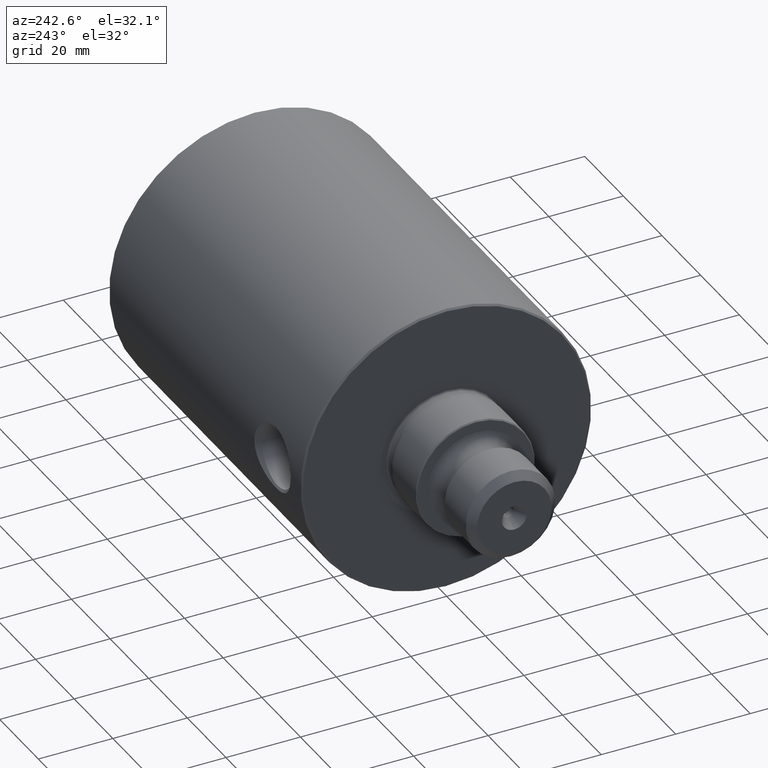
[diagram: clean part render]
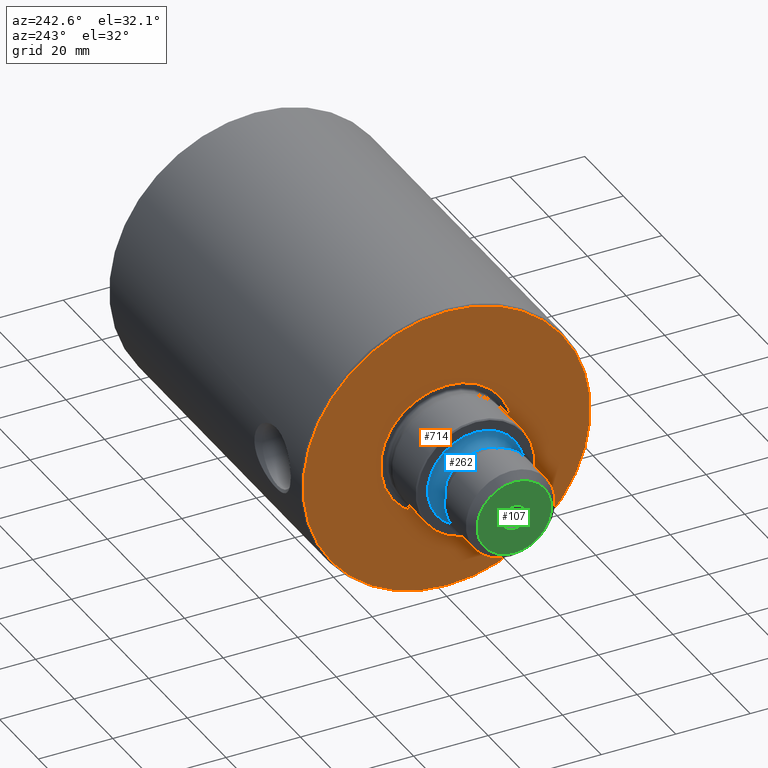
[diagram: same view with three faces highlighted in distinct colors, each labeled with its STEP entity id]
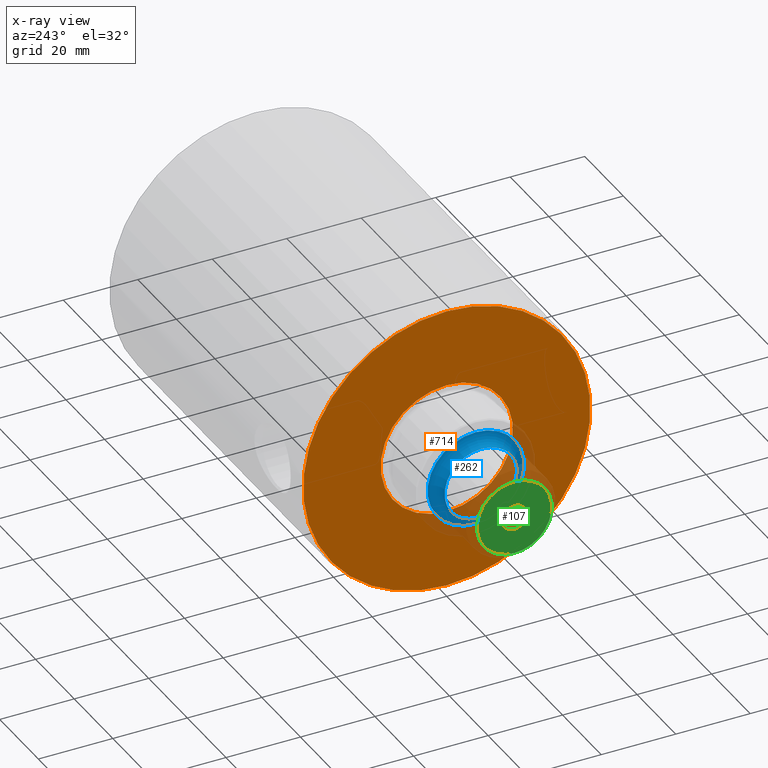
[diagram: x-ray of the same camera — body ghosted, the three highlighted faces saturated]
A machine part, auxiliary view with three faces highlighted in distinct colors.
The next image is the same camera in x-ray (body ghosted, the three faces saturated) — at least one of them is partly hidden behind the body in this view.
Their STEP definitions:

[orange] entity #714 — the highlighted planar face has unit normal (-1, 0, 0).
#77 = CIRCLE ( 'NONE', #969, 38.54999999999999000 ) ;
#84 = CARTESIAN_POINT ( 'NONE',  ( -100.0000000000000000, 0.0000000000000000000, -17.76503003164296500 ) ) ;
#96 = EDGE_CURVE ( 'NONE', #592, #592, #77, .T. ) ;
#103 = EDGE_CURVE ( 'NONE', #399, #399, #583, .T. ) ;
#116 = ORIENTED_EDGE ( 'NONE', *, *, #103, .T. ) ;
#125 = AXIS2_PLACEMENT_3D ( 'NONE', #363, #647, #577 ) ;
#333 = AXIS2_PLACEMENT_3D ( 'NONE', #897, #766, #800 ) ;
#363 = CARTESIAN_POINT ( 'NONE',  ( -100.0000000000000000, 0.0000000000000000000, 0.0000000000000000000 ) ) ;
#399 = VERTEX_POINT ( 'NONE', #84 ) ;
#412 = EDGE_LOOP ( 'NONE', ( #489 ) ) ;
#489 = ORIENTED_EDGE ( 'NONE', *, *, #96, .T. ) ;
#530 = FACE_BOUND ( 'NONE', #760, .T. ) ;
#577 = DIRECTION ( 'NONE',  ( 0.0000000000000000000, 0.0000000000000000000, -1.000000000000000000 ) ) ;
#583 = CIRCLE ( 'NONE', #125, 17.76503003164296500 ) ;
#592 = VERTEX_POINT ( 'NONE', #693 ) ;
#647 = DIRECTION ( 'NONE',  ( 1.000000000000000000, -0.0000000000000000000, -0.0000000000000000000 ) ) ;
#664 = DIRECTION ( 'NONE',  ( -1.000000000000000000, 0.0000000000000000000, 0.0000000000000000000 ) ) ;
#693 = CARTESIAN_POINT ( 'NONE',  ( -100.0000000000000000, 0.0000000000000000000, 38.54999999999999000 ) ) ;
#714 = ADVANCED_FACE ( 'NONE', ( #910, #530 ), #900, .T. ) ;
#760 = EDGE_LOOP ( 'NONE', ( #116 ) ) ;
#766 = DIRECTION ( 'NONE',  ( -1.000000000000000000, 0.0000000000000000000, 0.0000000000000000000 ) ) ;
#800 = DIRECTION ( 'NONE',  ( 0.0000000000000000000, 0.0000000000000000000, 1.000000000000000000 ) ) ;
#897 = CARTESIAN_POINT ( 'NONE',  ( -100.0000000000000000, 39.04999999999998300, 0.0000000000000000000 ) ) ;
#900 = PLANE ( 'NONE',  #333 ) ;
#910 = FACE_OUTER_BOUND ( 'NONE', #412, .T. ) ;
#924 = DIRECTION ( 'NONE',  ( 0.0000000000000000000, 0.0000000000000000000, 1.000000000000000000 ) ) ;
#942 = CARTESIAN_POINT ( 'NONE',  ( -100.0000000000000000, 0.0000000000000000000, 0.0000000000000000000 ) ) ;
#969 = AXIS2_PLACEMENT_3D ( 'NONE', #942, #664, #924 ) ;

[blue] entity #262 — the highlighted toroidal blend (fillet) surface has major radius 12.9 mm and minor (blend) radius 3 mm.
#16 = ORIENTED_EDGE ( 'NONE', *, *, #700, .T. ) ;
#27 = CARTESIAN_POINT ( 'NONE',  ( -118.0000000000000100, 0.0000000000000000000, -9.899999999999991500 ) ) ;
#76 = AXIS2_PLACEMENT_3D ( 'NONE', #967, #516, #977 ) ;
#161 = AXIS2_PLACEMENT_3D ( 'NONE', #955, #926, #933 ) ;
#174 = EDGE_LOOP ( 'NONE', ( #388 ) ) ;
#201 = VERTEX_POINT ( 'NONE', #923 ) ;
#206 = FACE_OUTER_BOUND ( 'NONE', #174, .T. ) ;
#237 = EDGE_LOOP ( 'NONE', ( #16 ) ) ;
#262 = ADVANCED_FACE ( 'NONE', ( #475, #206 ), #799, .F. ) ;
#388 = ORIENTED_EDGE ( 'NONE', *, *, #651, .F. ) ;
#420 = CIRCLE ( 'NONE', #161, 9.899999999999991500 ) ;
#475 = FACE_OUTER_BOUND ( 'NONE', #237, .T. ) ;
#505 = DIRECTION ( 'NONE',  ( 1.000000000000000000, -0.0000000000000000000, -0.0000000000000000000 ) ) ;
#516 = DIRECTION ( 'NONE',  ( 1.000000000000000000, -0.0000000000000000000, -0.0000000000000000000 ) ) ;
#585 = DIRECTION ( 'NONE',  ( 0.0000000000000000000, 0.0000000000000000000, -1.000000000000000000 ) ) ;
#651 = EDGE_CURVE ( 'NONE', #201, #201, #861, .T. ) ;
#700 = EDGE_CURVE ( 'NONE', #836, #836, #420, .T. ) ;
#741 = CARTESIAN_POINT ( 'NONE',  ( -118.0000000000000100, 0.0000000000000000000, 0.0000000000000000000 ) ) ;
#799 = TOROIDAL_SURFACE ( 'NONE', #930, 12.89999999999998800, 2.999999999999994700 ) ;
#836 = VERTEX_POINT ( 'NONE', #27 ) ;
#861 = CIRCLE ( 'NONE', #76, 12.89999999999998800 ) ;
#923 = CARTESIAN_POINT ( 'NONE',  ( -115.0000000000000100, 0.0000000000000000000, -12.89999999999998800 ) ) ;
#926 = DIRECTION ( 'NONE',  ( 1.000000000000000000, -0.0000000000000000000, -0.0000000000000000000 ) ) ;
#930 = AXIS2_PLACEMENT_3D ( 'NONE', #741, #505, #585 ) ;
#933 = DIRECTION ( 'NONE',  ( 0.0000000000000000000, 0.0000000000000000000, -1.000000000000000000 ) ) ;
#955 = CARTESIAN_POINT ( 'NONE',  ( -118.0000000000000100, 0.0000000000000000000, 0.0000000000000000000 ) ) ;
#967 = CARTESIAN_POINT ( 'NONE',  ( -115.0000000000000100, 0.0000000000000000000, 0.0000000000000000000 ) ) ;
#977 = DIRECTION ( 'NONE',  ( 0.0000000000000000000, 0.0000000000000000000, -1.000000000000000000 ) ) ;

[green] entity #107 — the highlighted planar face has unit normal (-1, 0, 0).
#32 = DIRECTION ( 'NONE',  ( -1.000000000000000000, 0.0000000000000000000, 0.0000000000000000000 ) ) ;
#72 = PLANE ( 'NONE',  #728 ) ;
#107 = ADVANCED_FACE ( 'NONE', ( #432, #665 ), #72, .T. ) ;
#182 = EDGE_LOOP ( 'NONE', ( #913 ) ) ;
#248 = CARTESIAN_POINT ( 'NONE',  ( -135.0000000000000000, 0.0000000000000000000, -3.349999999999983700 ) ) ;
#288 = CARTESIAN_POINT ( 'NONE',  ( -135.0000000000000000, 0.0000000000000000000, 0.0000000000000000000 ) ) ;
#294 = DIRECTION ( 'NONE',  ( 0.0000000000000000000, 0.0000000000000000000, -1.000000000000000000 ) ) ;
#307 = EDGE_CURVE ( 'NONE', #966, #966, #972, .T. ) ;
#432 = FACE_BOUND ( 'NONE', #182, .T. ) ;
#458 = CARTESIAN_POINT ( 'NONE',  ( -135.0000000000000000, 0.0000000000000000000, 0.0000000000000000000 ) ) ;
#492 = EDGE_CURVE ( 'NONE', #815, #815, #916, .T. ) ;
#495 = EDGE_LOOP ( 'NONE', ( #777 ) ) ;
#500 = DIRECTION ( 'NONE',  ( 1.000000000000000000, -0.0000000000000000000, -0.0000000000000000000 ) ) ;
#521 = DIRECTION ( 'NONE',  ( 1.000000000000000000, -0.0000000000000000000, -0.0000000000000000000 ) ) ;
#665 = FACE_OUTER_BOUND ( 'NONE', #495, .T. ) ;
#728 = AXIS2_PLACEMENT_3D ( 'NONE', #931, #32, #832 ) ;
#777 = ORIENTED_EDGE ( 'NONE', *, *, #307, .F. ) ;
#795 = CARTESIAN_POINT ( 'NONE',  ( -135.0000000000000000, 0.0000000000000000000, -9.999999999999973400 ) ) ;
#815 = VERTEX_POINT ( 'NONE', #248 ) ;
#832 = DIRECTION ( 'NONE',  ( 0.0000000000000000000, 0.0000000000000000000, 1.000000000000000000 ) ) ;
#868 = DIRECTION ( 'NONE',  ( 0.0000000000000000000, 0.0000000000000000000, -1.000000000000000000 ) ) ;
#875 = AXIS2_PLACEMENT_3D ( 'NONE', #458, #521, #868 ) ;
#913 = ORIENTED_EDGE ( 'NONE', *, *, #492, .T. ) ;
#916 = CIRCLE ( 'NONE', #978, 3.349999999999983700 ) ;
#931 = CARTESIAN_POINT ( 'NONE',  ( -135.0000000000000000, 9.999999999999973400, 0.0000000000000000000 ) ) ;
#966 = VERTEX_POINT ( 'NONE', #795 ) ;
#972 = CIRCLE ( 'NONE', #875, 9.999999999999973400 ) ;
#978 = AXIS2_PLACEMENT_3D ( 'NONE', #288, #500, #294 ) ;